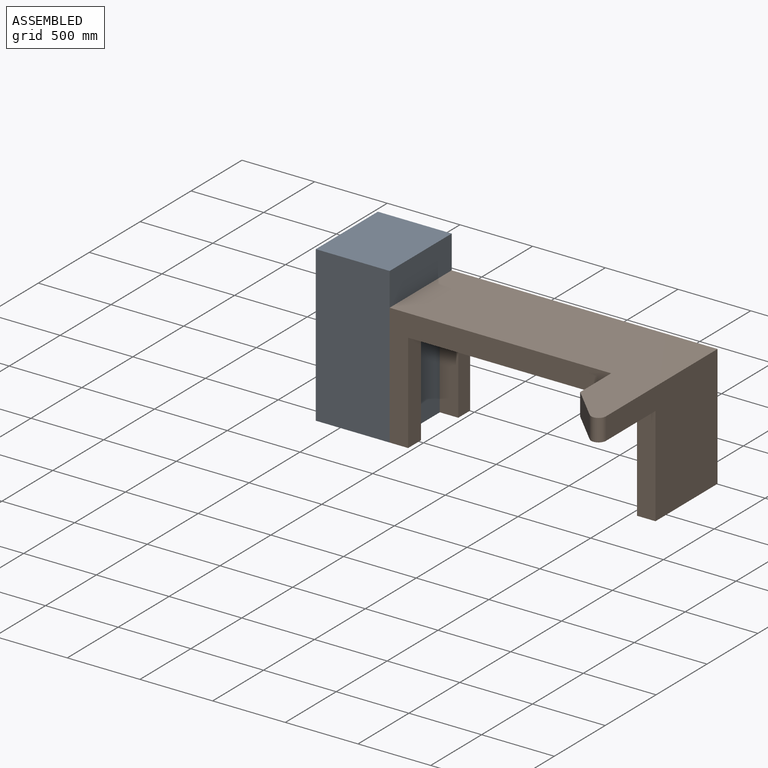
[diagram: assembled view]
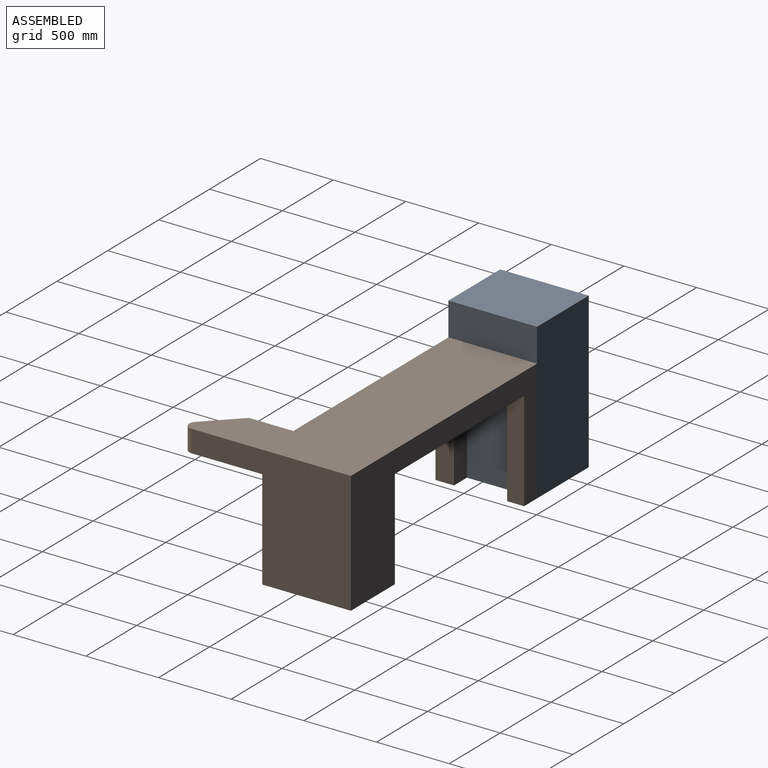
[diagram: assembled view, second angle]
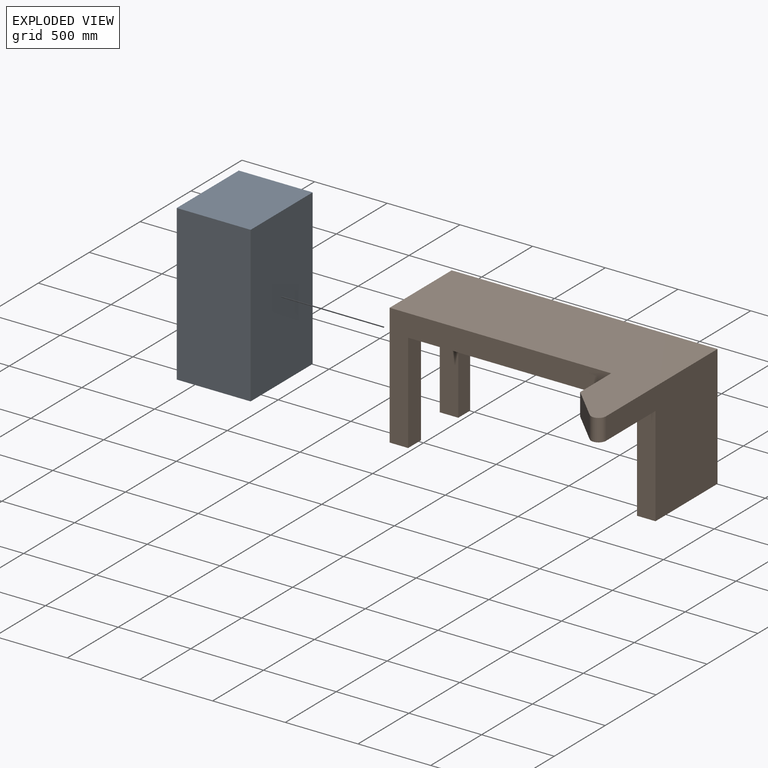
[diagram: exploded view]
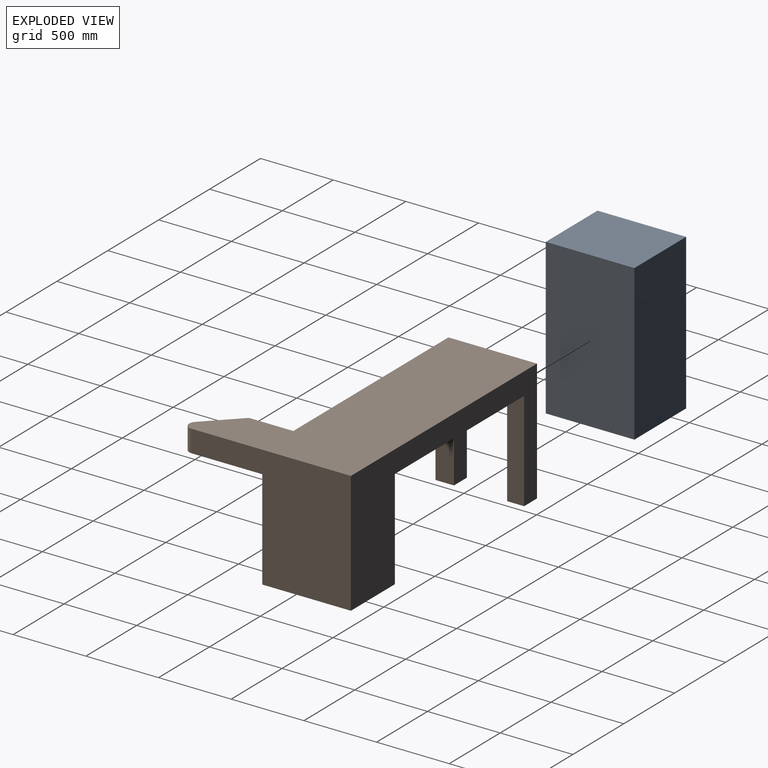
[diagram: exploded view, second angle]
ASSEMBLY  parts=2 mates=3
PART A: 6 faces, bbox 508x609.6x1066.8 mm
  f0: plane 1066.8x508mm, normal (0,-1,0), area 541934.4mm2, adj f1,f3,f4,f5
  f1: plane 1066.8x609.6mm, normal (1,0,0), area 650321.3mm2, adj f0,f2,f4,f5
  f2: plane 1066.8x508mm, normal (0,1,0), area 541934.4mm2, adj f1,f3,f4,f5
  f3: plane 1066.8x609.6mm, normal (-1,0,0), area 650321.3mm2, adj f0,f2,f4,f5
  f4: plane 609.6x508mm, normal (0,0,1), area 309676.8mm2, adj f0,f1,f2,f3
  f5: plane 609.6x508mm, normal (0,0,-1), area 309676.8mm2, adj f0,f1,f2,f3
PART B: 20 faces, bbox 1828.8x1147.4x838.2 mm
  f0: plane 1524x838.2mm, normal (0,-1,0), area 319354.2mm2, adj f4,f5,f6,f7,f9,f17
  f1: plane 685.8x127mm, normal (0,-1,0), area 87096.6mm2, adj f2,f6,f13,f16
  f2: plane 1096.56x838.2mm, normal (1,0,0), area 585179.1mm2, adj f1,f3,f5,f6,f16,f19
  f3: plane 1828.8x838.2mm, normal (0,1,0), area 661934.2mm2, adj f2,f4,f5,f6,f10,f12,f15,f16
  f4: plane 838.2x609.6mm, normal (-1,0,0), area 260183.1mm2, adj f0,f3,f5,f6,f8,f9,f11,f12
  f5: plane 1828.8x1147.36mm, normal (0,0,1), area 1251001.1mm2, adj f0,f2,f3,f4,f17,f18,f19
  f6: plane 1828.8x1147.36mm, normal (0,0,-1), area 1103894.5mm2, adj f0,f1,f2,f3,f4,f7,f8,f10
  f7: plane 685.8x127mm, normal (1,0,0), area 87096.6mm2, adj f0,f6,f8,f9
  f8: plane 685.8x127mm, normal (0,1,0), area 87096.6mm2, adj f4,f6,f7,f9
  f9: plane 127x127mm, normal (0,0,-1), area 16129mm2, adj f0,f4,f7,f8
  f10: plane 685.8x116.92mm, normal (1,0,0), area 80183.5mm2, adj f3,f6,f11,f12
  f11: plane 685.8x127mm, normal (0,-1,0), area 87096.6mm2, adj f4,f6,f10,f12
  f12: plane 127x116.92mm, normal (0,0,-1), area 14848.8mm2, adj f3,f4,f10,f11
  f13: plane 685.8x482.6mm, normal (-1,0,0), area 330967.1mm2, adj f1,f6,f14,f16
  f14: plane 685.8x304.8mm, normal (0,-1,0), area 209031.8mm2, adj f6,f13,f15,f16
  f15: plane 685.8x127mm, normal (-1,0,0), area 87096.6mm2, adj f3,f6,f14,f16
  f16: plane 609.6x431.8mm, normal (0,0,-1), area 116128.8mm2, adj f1,f2,f3,f13,f14,f15
  f17: plane 304.8x152.4mm, normal (-1,0,0), area 46451.5mm2, adj f0,f5,f6,f18
  f18: plane 218.08x218.08mm, normal (-0.71,-0.71,0), area 47001.7mm2, adj f5,f6,f17,f19
  f19: cylinder r=50.8mm len=152.4mm, axis (0,0,1), area 18241.5mm2, adj f2,f5,f6,f18
PLACE A t=(-2360.39,-375.92,-668)mm
PLACE B t=(-1191.99,-375.92,17.8)mm
MATE planar B.f3 <-> A.f2  axis (0,1,0) through (-991.47,-71.12,-148.64)mm
MATE planar A.f1 <-> B.f4  axis (1,0,0) through (-2106.39,-375.92,-134.6)mm
MATE planar A.f5 <-> B.f9  axis (0,0,-1) through (-2360.39,-375.92,-668)mm
